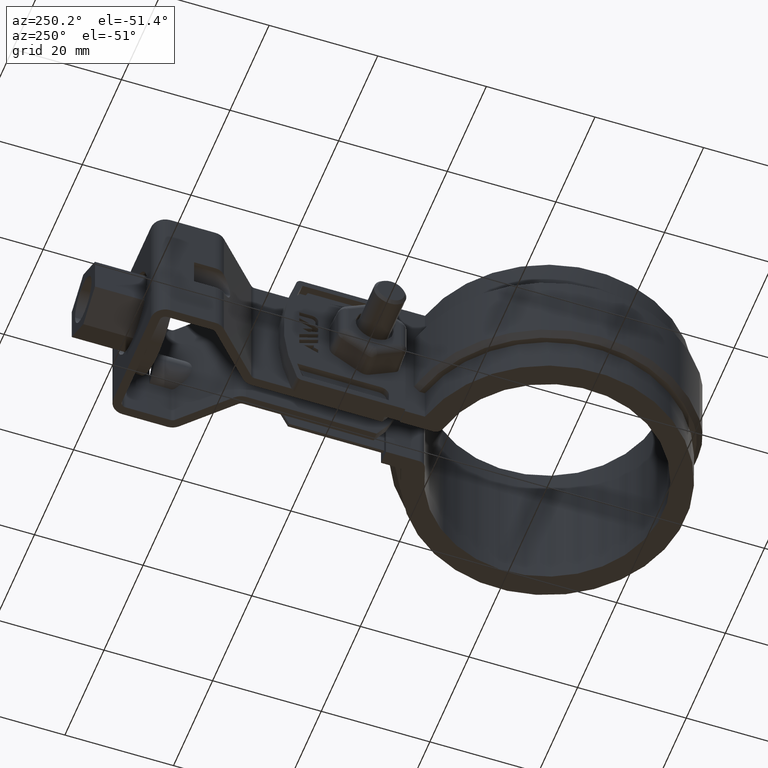
[diagram: clean part render]
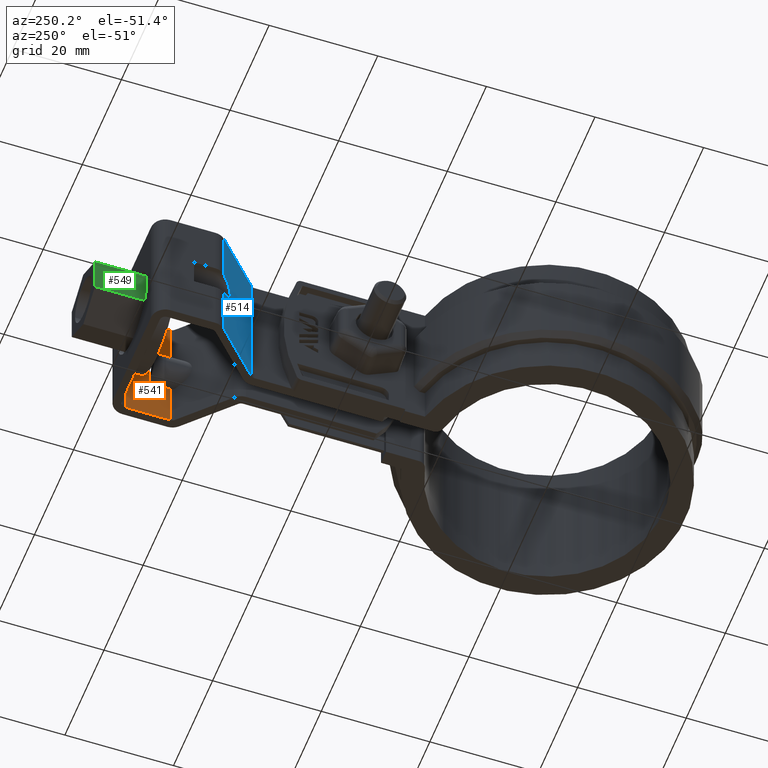
[diagram: same view with three faces highlighted in distinct colors, each labeled with its STEP entity id]
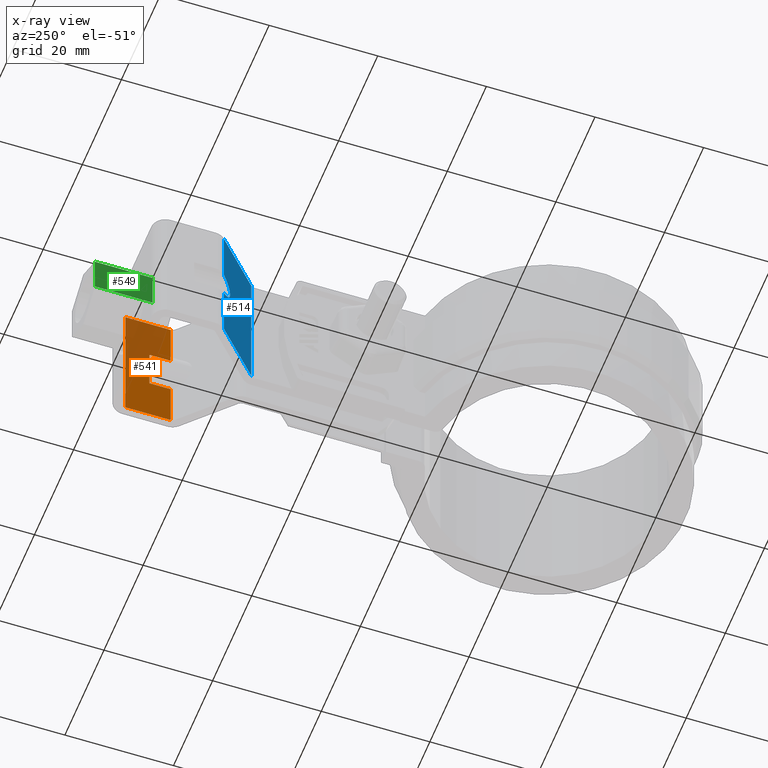
[diagram: x-ray of the same camera — body ghosted, the three highlighted faces saturated]
A machine part, auxiliary view with three faces highlighted in distinct colors.
The next image is the same camera in x-ray (body ghosted, the three faces saturated) — at least one of them is partly hidden behind the body in this view.
Their STEP definitions:

[orange] entity #541 — the highlighted planar face has unit normal (-1, -0, -0).
#541 = ADVANCED_FACE( '', ( #1100 ), #1101, .T. );
#1100 = FACE_OUTER_BOUND( '', #2241, .T. );
#1101 = PLANE( '', #2242 );
#2241 = EDGE_LOOP( '', ( #5945, #5946, #5947, #5948, #5949, #5950, #5951, #5952, #5953, #5954 ) );
#2242 = AXIS2_PLACEMENT_3D( '', #5955, #5956, #5957 );
#5945 = ORIENTED_EDGE( '', *, *, #7873, .T. );
#5946 = ORIENTED_EDGE( '', *, *, #7864, .T. );
#5947 = ORIENTED_EDGE( '', *, *, #7818, .T. );
#5948 = ORIENTED_EDGE( '', *, *, #7863, .T. );
#5949 = ORIENTED_EDGE( '', *, *, #7874, .T. );
#5950 = ORIENTED_EDGE( '', *, *, #7868, .F. );
#5951 = ORIENTED_EDGE( '', *, *, #7750, .F. );
#5952 = ORIENTED_EDGE( '', *, *, #7865, .T. );
#5953 = ORIENTED_EDGE( '', *, *, #7797, .T. );
#5954 = ORIENTED_EDGE( '', *, *, #7821, .F. );
#5955 = CARTESIAN_POINT( '', ( 10.6500000000003, 73.8025110200030, -2.43000064514831E-011 ) );
#5956 = DIRECTION( '', ( -1.00000000000000, -7.98723925267201E-016, -5.79906149265224E-015 ) );
#5957 = DIRECTION( '', ( -5.79906149265224E-015, -6.30082078707964E-046, 1.00000000000000 ) );
#7750 = EDGE_CURVE( '', #9008, #9010, #9011, .F. );
#7797 = EDGE_CURVE( '', #9100, #9098, #9101, .T. );
#7818 = EDGE_CURVE( '', #9121, #9123, #9135, .F. );
#7821 = EDGE_CURVE( '', #9138, #9098, #9140, .T. );
#7863 = EDGE_CURVE( '', #9123, #9197, #9200, .T. );
#7864 = EDGE_CURVE( '', #9198, #9121, #9201, .T. );
#7865 = EDGE_CURVE( '', #9008, #9100, #9202, .T. );
#7868 = EDGE_CURVE( '', #9010, #9203, #9207, .T. );
#7873 = EDGE_CURVE( '', #9138, #9198, #9214, .F. );
#7874 = EDGE_CURVE( '', #9197, #9203, #9215, .T. );
#9008 = VERTEX_POINT( '', #13138 );
#9010 = VERTEX_POINT( '', #13140 );
#9011 = LINE( '', #13141, #13142 );
#9098 = VERTEX_POINT( '', #13256 );
#9100 = VERTEX_POINT( '', #13258 );
#9101 = LINE( '', #13259, #13260 );
#9121 = VERTEX_POINT( '', #13292 );
#9123 = VERTEX_POINT( '', #13294 );
#9135 = LINE( '', #13319, #13320 );
#9138 = VERTEX_POINT( '', #13324 );
#9140 = LINE( '', #13331, #13332 );
#9197 = VERTEX_POINT( '', #13441 );
#9198 = VERTEX_POINT( '', #13442 );
#9200 = LINE( '', #13444, #13445 );
#9201 = LINE( '', #13446, #13447 );
#9202 = LINE( '', #13448, #13449 );
#9203 = VERTEX_POINT( '', #13450 );
#9207 = LINE( '', #13460, #13461 );
#9214 = LINE( '', #13470, #13471 );
#9215 = LINE( '', #13472, #13473 );
#13138 = CARTESIAN_POINT( '', ( 10.6500000000003, 73.8025110200030, -2.43210633812604E-011 ) );
#13140 = CARTESIAN_POINT( '', ( 10.6500000000003, 65.4983167888931, -2.53683994487484E-011 ) );
#13141 = CARTESIAN_POINT( '', ( 10.6500000000003, 73.8025110200027, -2.43210633812605E-011 ) );
#13142 = VECTOR( '', #15017, 1000.00000000000 );
#13256 = CARTESIAN_POINT( '', ( 10.6500000000005, 65.4983167888963, -25.0000000000253 ) );
#13258 = CARTESIAN_POINT( '', ( 10.6500000000004, 73.8025110200062, -25.0000000000243 ) );
#13259 = CARTESIAN_POINT( '', ( 10.6500000000004, 73.8025110200062, -25.0000000000243 ) );
#13260 = VECTOR( '', #15102, 1000.00000000000 );
#13292 = CARTESIAN_POINT( '', ( 10.6500000000004, 69.4025110200047, -14.6124630174526 ) );
#13294 = CARTESIAN_POINT( '', ( 10.6500000000004, 69.4025110200042, -10.3875369825971 ) );
#13319 = CARTESIAN_POINT( '', ( 10.6500000000003, 69.4025110200030, -2.48549403281117E-011 ) );
#13320 = VECTOR( '', #15139, 1000.00000000000 );
#13324 = CARTESIAN_POINT( '', ( 10.6500000000004, 65.4983167888951, -16.4373214245473 ) );
#13331 = CARTESIAN_POINT( '', ( 10.6500000000003, 65.4983167888931, -2.53408405370692E-011 ) );
#13332 = VECTOR( '', #15141, 1000.00000000000 );
#13441 = CARTESIAN_POINT( '', ( 10.6500000000004, 69.4025110200038, -8.56267857550289 ) );
#13442 = CARTESIAN_POINT( '', ( 10.6500000000004, 69.4025110200048, -16.4373214245468 ) );
#13444 = CARTESIAN_POINT( '', ( 10.6500000000003, 69.4025110200027, -2.48549403281118E-011 ) );
#13445 = VECTOR( '', #15201, 1000.00000000000 );
#13446 = CARTESIAN_POINT( '', ( 10.6500000000003, 69.4025110200027, -2.48549403281118E-011 ) );
#13447 = VECTOR( '', #15202, 1000.00000000000 );
#13448 = CARTESIAN_POINT( '', ( 10.6500000000003, 73.8025110200030, -2.43000064514831E-011 ) );
#13449 = VECTOR( '', #15203, 1000.00000000000 );
#13450 = CARTESIAN_POINT( '', ( 10.6500000000004, 65.4983167888941, -8.56267857550337 ) );
#13460 = CARTESIAN_POINT( '', ( 10.6500000000003, 65.4983167888931, -2.53408405370692E-011 ) );
#13461 = VECTOR( '', #15205, 1000.00000000000 );
#13470 = CARTESIAN_POINT( '', ( 10.6500000000004, 59.4025110200048, -16.4373214245481 ) );
#13471 = VECTOR( '', #15214, 1000.00000000000 );
#13472 = CARTESIAN_POINT( '', ( 10.6500000000004, 59.4025110200038, -8.56267857550415 ) );
#13473 = VECTOR( '', #15215, 1000.00000000000 );
#15017 = DIRECTION( '', ( -7.98723925267932E-016, 1.00000000000000, 1.26121335597421E-013 ) );
#15102 = DIRECTION( '', ( 7.98723925267932E-016, -1.00000000000000, -1.26121335597421E-013 ) );
#15139 = DIRECTION( '', ( 5.79906149265214E-015, 1.26121335597421E-013, -1.00000000000000 ) );
#15141 = DIRECTION( '', ( 5.79906149265214E-015, 1.26121335597421E-013, -1.00000000000000 ) );
#15201 = DIRECTION( '', ( -5.79906149265214E-015, -1.26121335597421E-013, 1.00000000000000 ) );
#15202 = DIRECTION( '', ( -5.79906149265214E-015, -1.26121335597421E-013, 1.00000000000000 ) );
#15203 = DIRECTION( '', ( 5.79906149265214E-015, 1.26121335597421E-013, -1.00000000000000 ) );
#15205 = DIRECTION( '', ( 5.79906149265214E-015, 1.26121335597421E-013, -1.00000000000000 ) );
#15214 = DIRECTION( '', ( 7.98723925267933E-016, -1.00000000000000, -1.26121335597421E-013 ) );
#15215 = DIRECTION( '', ( 7.98723925267933E-016, -1.00000000000000, -1.26121335597421E-013 ) );

[blue] entity #514 — the highlighted planar face has unit normal (-0.6983, -0.7158, -0).
#514 = ADVANCED_FACE( '', ( #1039 ), #1040, .T. );
#1039 = FACE_OUTER_BOUND( '', #2180, .T. );
#1040 = PLANE( '', #2181 );
#2180 = EDGE_LOOP( '', ( #5742, #5743, #5744, #5745, #5746, #5747 ) );
#2181 = AXIS2_PLACEMENT_3D( '', #5748, #5749, #5750 );
#5742 = ORIENTED_EDGE( '', *, *, #7783, .F. );
#5743 = ORIENTED_EDGE( '', *, *, #7831, .T. );
#5744 = ORIENTED_EDGE( '', *, *, #7766, .T. );
#5745 = ORIENTED_EDGE( '', *, *, #7832, .T. );
#5746 = ORIENTED_EDGE( '', *, *, #7833, .F. );
#5747 = ORIENTED_EDGE( '', *, *, #7829, .T. );
#5748 = CARTESIAN_POINT( '', ( -3.90167616446913, 56.2578052156311, -2.66175970153881E-011 ) );
#5749 = DIRECTION( '', ( -0.698323835530500, -0.715781964518506, -9.43250002256461E-014 ) );
#5750 = DIRECTION( '', ( -0.715781964518506, 0.698323835530500, 0.000000000000000 ) );
#7766 = EDGE_CURVE( '', #9042, #9040, #9043, .F. );
#7783 = EDGE_CURVE( '', #9072, #9074, #9075, .T. );
#7829 = EDGE_CURVE( '', #9152, #9074, #9153, .T. );
#7831 = EDGE_CURVE( '', #9072, #9042, #9155, .T. );
#7832 = EDGE_CURVE( '', #9040, #9156, #9157, .T. );
#7833 = EDGE_CURVE( '', #9152, #9156, #9158, .T. );
#9040 = VERTEX_POINT( '', #13179 );
#9042 = VERTEX_POINT( '', #13181 );
#9043 = LINE( '', #13182, #13183 );
#9072 = VERTEX_POINT( '', #13222 );
#9074 = VERTEX_POINT( '', #13224 );
#9075 = LINE( '', #13225, #13226 );
#9152 = VERTEX_POINT( '', #13351 );
#9153 = LINE( '', #13352, #13353 );
#9155 = LINE( '', #13364, #13365 );
#9156 = VERTEX_POINT( '', #13366 );
#9157 = LINE( '', #13367, #13368 );
#9158 = ELLIPSE( '', #13369, 3.70224472166267, 2.64999999999997 );
#13179 = CARTESIAN_POINT( '', ( -11.4656419723789, 63.6372837113687, -2.57313653938241E-011 ) );
#13181 = CARTESIAN_POINT( '', ( -3.30167616446912, 55.6724393890415, -2.66885588578375E-011 ) );
#13182 = CARTESIAN_POINT( '', ( -3.90167616446913, 56.2578052156311, -2.66182111748705E-011 ) );
#13183 = VECTOR( '', #15047, 1000.00000000000 );
#13222 = CARTESIAN_POINT( '', ( -3.30167616446898, 55.6724393890447, -25.0000000000267 ) );
#13224 = CARTESIAN_POINT( '', ( -11.4656419723788, 63.6372837113719, -25.0000000000257 ) );
#13225 = CARTESIAN_POINT( '', ( -15.6164735706431, 67.6868753272922, -25.0000000000252 ) );
#13226 = VECTOR( '', #15076, 1000.00000000000 );
#13351 = CARTESIAN_POINT( '', ( -11.4656419723788, 63.6372837113706, -15.0312610463240 ) );
#13352 = CARTESIAN_POINT( '', ( -11.4656419723789, 63.6372837113687, -2.57294185956880E-011 ) );
#13353 = VECTOR( '', #15149, 1000.00000000000 );
#13364 = CARTESIAN_POINT( '', ( -3.30167616446912, 55.6724393890415, -2.67008637422350E-011 ) );
#13365 = VECTOR( '', #15150, 1000.00000000000 );
#13366 = CARTESIAN_POINT( '', ( -11.4656419723789, 63.6372837113700, -9.96873895372752 ) );
#13367 = CARTESIAN_POINT( '', ( -11.4656419723789, 63.6372837113687, -2.57294185956880E-011 ) );
#13368 = VECTOR( '', #15151, 1000.00000000000 );
#13369 = AXIS2_PLACEMENT_3D( '', #15152, #15153, #15154 );
#15047 = DIRECTION( '', ( 0.715781964518506, -0.698323835530500, -8.39226711890462E-014 ) );
#15076 = DIRECTION( '', ( -0.715781964518506, 0.698323835530500, 8.39226711890462E-014 ) );
#15149 = DIRECTION( '', ( 5.79906149265214E-015, 1.26121335597421E-013, -1.00000000000000 ) );
#15150 = DIRECTION( '', ( -5.73783117496102E-015, -1.26181072489967E-013, 1.00000000000000 ) );
#15151 = DIRECTION( '', ( 5.79906149265214E-015, 1.26121335597421E-013, -1.00000000000000 ) );
#15152 = CARTESIAN_POINT( '', ( -12.2499999999995, 64.4025110200042, -12.5000000000257 ) );
#15153 = DIRECTION( '', ( -0.698323835530500, -0.715781964518506, -9.43250002256461E-014 ) );
#15154 = DIRECTION( '', ( 0.715781964518506, -0.698323835530500, -8.39226711890461E-014 ) );

[green] entity #549 — the highlighted planar face has unit normal (1, 0, 0).
#549 = ADVANCED_FACE( '', ( #1118 ), #1119, .F. );
#1118 = FACE_OUTER_BOUND( '', #2259, .T. );
#1119 = PLANE( '', #2260 );
#2259 = EDGE_LOOP( '', ( #6014, #6015, #6016, #6017 ) );
#2260 = AXIS2_PLACEMENT_3D( '', #6018, #6019, #6020 );
#6014 = ORIENTED_EDGE( '', *, *, #7885, .T. );
#6015 = ORIENTED_EDGE( '', *, *, #7888, .F. );
#6016 = ORIENTED_EDGE( '', *, *, #7889, .F. );
#6017 = ORIENTED_EDGE( '', *, *, #7890, .T. );
#6018 = CARTESIAN_POINT( '', ( -5.94999999999956, 85.4025110200047, -15.9352341017012 ) );
#6019 = DIRECTION( '', ( 1.00000000000000, 9.21184560649493E-016, 5.18332945907131E-030 ) );
#6020 = DIRECTION( '', ( 7.00649232162409E-046, -5.62680887249862E-015, 1.00000000000000 ) );
#7885 = EDGE_CURVE( '', #9235, #9233, #9236, .T. );
#7888 = EDGE_CURVE( '', #9240, #9233, #9241, .T. );
#7889 = EDGE_CURVE( '', #9242, #9240, #9243, .T. );
#7890 = EDGE_CURVE( '', #9242, #9235, #9244, .T. );
#9233 = VERTEX_POINT( '', #13496 );
#9235 = VERTEX_POINT( '', #13499 );
#9236 = LINE( '', #13500, #13501 );
#9240 = VERTEX_POINT( '', #13507 );
#9241 = LINE( '', #13508, #13509 );
#9242 = VERTEX_POINT( '', #13510 );
#9243 = LINE( '', #13511, #13512 );
#9244 = LINE( '', #13513, #13514 );
#13496 = CARTESIAN_POINT( '', ( -5.94999999999959, 74.8025110200039, -9.06476589834602 ) );
#13499 = CARTESIAN_POINT( '', ( -5.94999999999955, 74.8025110200047, -15.9352341017026 ) );
#13500 = CARTESIAN_POINT( '', ( -5.94999999999955, 74.8025110200047, -15.9352341017026 ) );
#13501 = VECTOR( '', #15234, 1000.00000000000 );
#13507 = CARTESIAN_POINT( '', ( -5.94999999999960, 85.4025110200039, -9.06476589834468 ) );
#13508 = CARTESIAN_POINT( '', ( -5.94999999999960, 85.4025110200039, -9.06476589834468 ) );
#13509 = VECTOR( '', #15237, 1000.00000000000 );
#13510 = CARTESIAN_POINT( '', ( -5.94999999999956, 85.4025110200047, -15.9352341017012 ) );
#13511 = CARTESIAN_POINT( '', ( -5.94999999999956, 85.4025110200047, -15.9352341017012 ) );
#13512 = VECTOR( '', #15238, 1000.00000000000 );
#13513 = CARTESIAN_POINT( '', ( -5.94999999999956, 85.4025110200047, -15.9352341017012 ) );
#13514 = VECTOR( '', #15239, 1000.00000000000 );
#15234 = DIRECTION( '', ( -5.68232002372977E-015, -1.26121335597421E-013, 1.00000000000000 ) );
#15237 = DIRECTION( '', ( 9.21184560650170E-016, -1.00000000000000, -1.26121335597421E-013 ) );
#15238 = DIRECTION( '', ( -5.68232002372977E-015, -1.26121335597421E-013, 1.00000000000000 ) );
#15239 = DIRECTION( '', ( 9.21184560650170E-016, -1.00000000000000, -1.26121335597421E-013 ) );